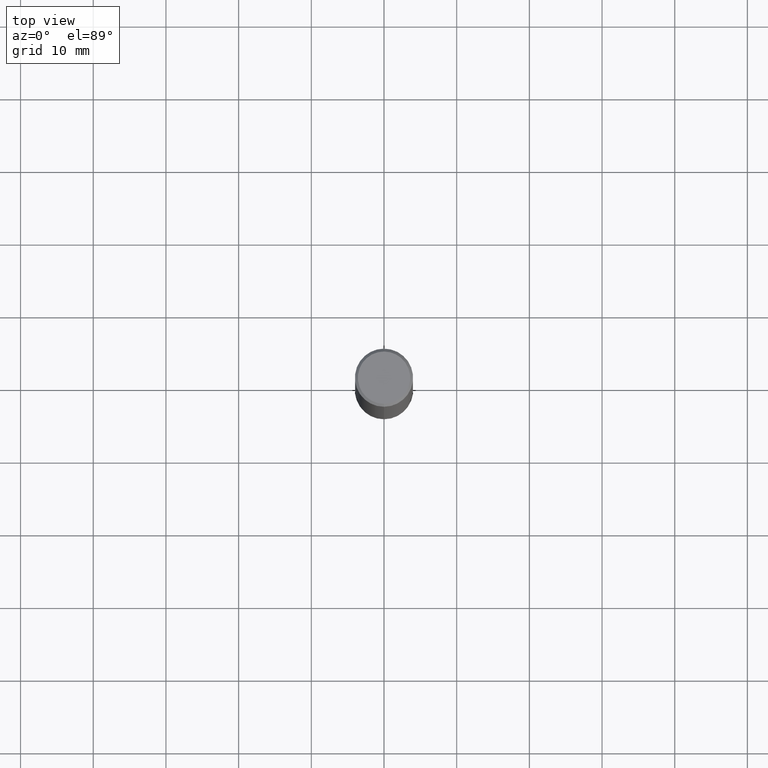
[diagram: clean part render]
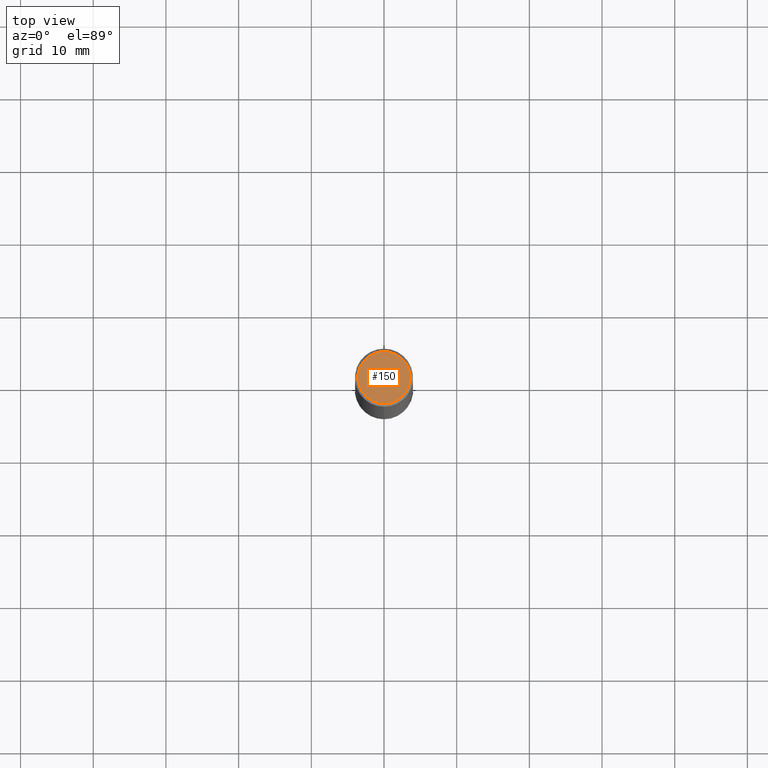
[diagram: same view with one face highlighted and labeled with its STEP entity id]
A machine part, top view. The second image highlights one B-rep face of the part: STEP entity #150.
In plain terms, the highlighted planar face has unit normal (-0, 0, 1).
Its self-contained STEP definition (entity closure, byte-faithful):
#72=EDGE_CURVE('',#134,#108,#176,.T.);
#76=EDGE_CURVE('',#108,#134,#181,.T.);
#108=VERTEX_POINT('',#216);
#134=VERTEX_POINT('',#245);
#150=ADVANCED_FACE('',(#265),#266,.T.);
#176=CIRCLE('',#284,3.6);
#181=CIRCLE('',#290,3.6);
#216=CARTESIAN_POINT('',(0.0,3.6,0.0));
#245=CARTESIAN_POINT('',(4.40858287376056E-016,-3.6,0.0));
#265=FACE_OUTER_BOUND('',#396,.T.);
#266=PLANE('',#397);
#284=AXIS2_PLACEMENT_3D('',#406,#407,#408);
#290=AXIS2_PLACEMENT_3D('',#417,#418,#419);
#396=EDGE_LOOP('',(#531,#532));
#397=AXIS2_PLACEMENT_3D('',#533,#534,#535);
#406=CARTESIAN_POINT('',(0.0,0.0,0.0));
#407=DIRECTION('',(0.0,0.0,-1.0));
#408=DIRECTION('',(0.0,1.0,0.0));
#417=CARTESIAN_POINT('',(0.0,0.0,0.0));
#418=DIRECTION('',(0.0,0.0,-1.0));
#419=DIRECTION('',(0.0,1.0,0.0));
#531=ORIENTED_EDGE('',*,*,#76,.F.);
#532=ORIENTED_EDGE('',*,*,#72,.F.);
#533=CARTESIAN_POINT('',(0.0,1.8,0.0));
#534=DIRECTION('',(-0.0,0.0,1.0));
#535=DIRECTION('',(0.0,-1.0,0.0));